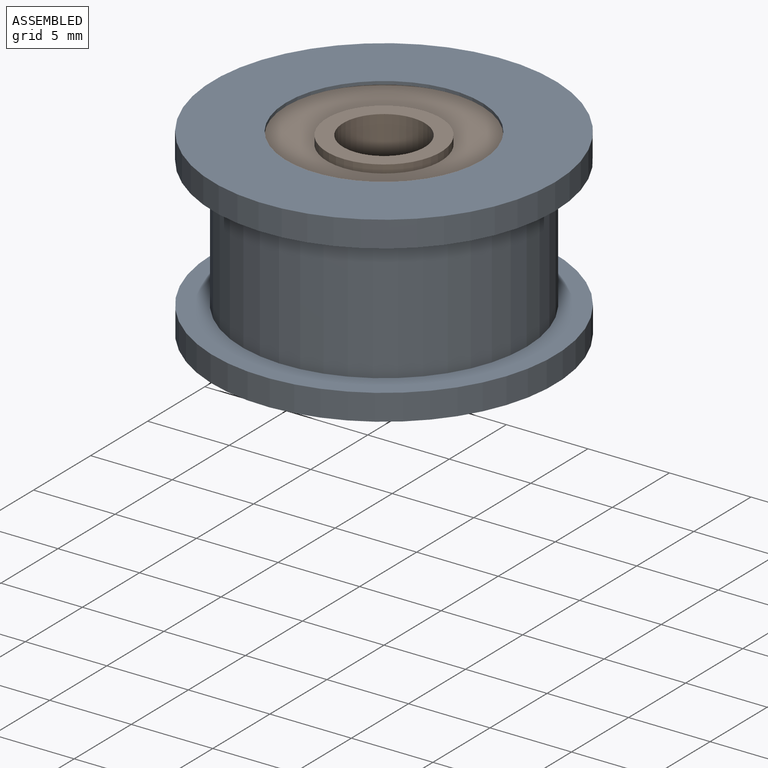
[diagram: assembled view]
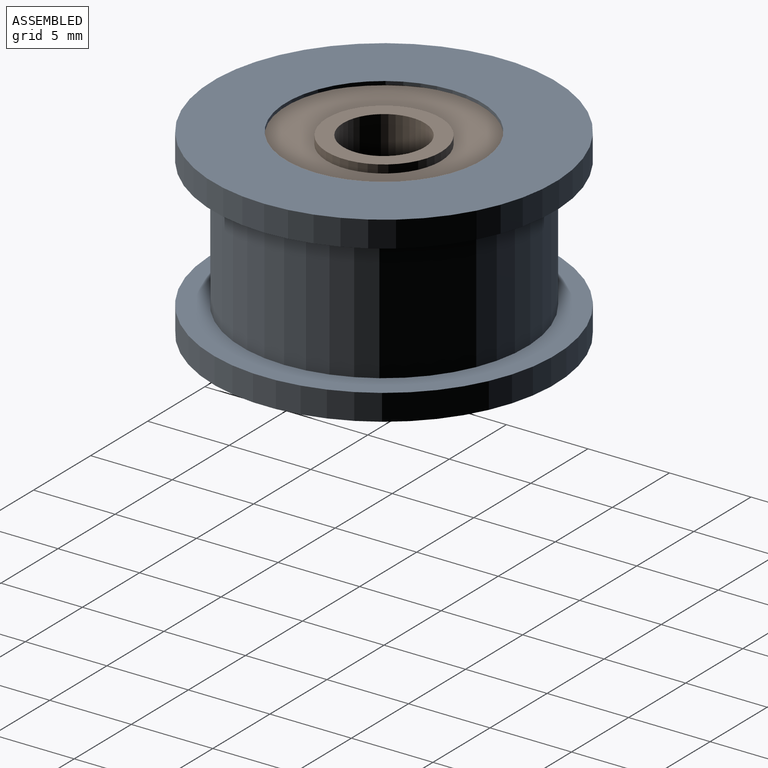
[diagram: assembled view, second angle]
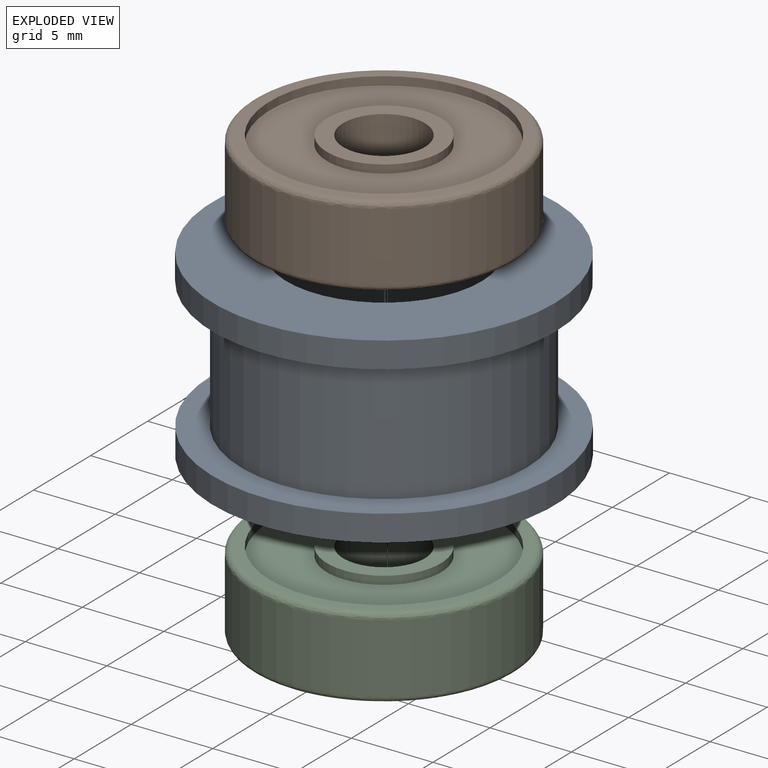
[diagram: exploded view]
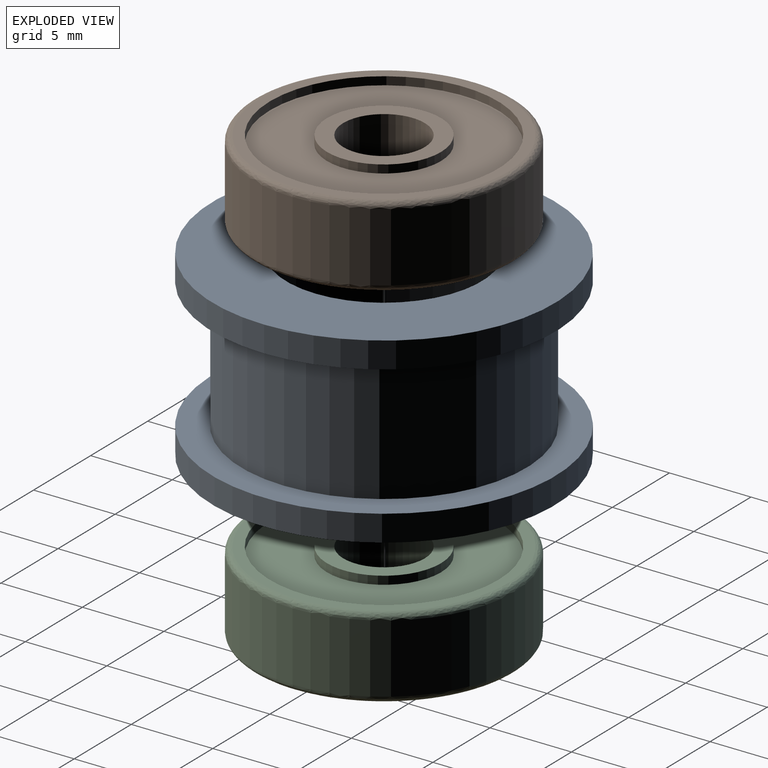
[diagram: exploded view, second angle]
ASSEMBLY  parts=4 mates=3
PART A: 10 faces, bbox 21x21x11.2 mm
  f0: plane 21x21mm, normal (0,0,-1), area 105.8mm2, adj f1,f2
  f1: cylinder r=10.5mm len=21mm, axis (0,0,1), area 105.6mm2, adj f0,f3
  f2: cylinder r=8.75mm len=17.5mm, axis (0,0,1), area 439.8mm2, adj f0,f4
  f3: plane 21x21mm, normal (0,0,1), area 233.3mm2, adj f1,f9
  f4: plane 21x21mm, normal (0,0,1), area 105.8mm2, adj f2,f5
  f5: cylinder r=10.5mm len=21mm, axis (0,0,-1), area 105.6mm2, adj f4,f7
  f6: plane 16x16mm, normal (0,0,-1), area 88mm2, adj f8,f9
  f7: plane 21x21mm, normal (0,0,-1), area 145.3mm2, adj f5,f8
  f8: cylinder r=8mm len=16mm, axis (0,0,1), area 552.9mm2, adj f6,f7
  f9: cylinder r=6mm len=12mm, axis (0,0,1), area 7.5mm2, adj f3,f6
PART B: 15 faces, bbox 16x16x5 mm
  f0: cylinder r=2.5mm len=5mm, axis (0,0,-1), area 78.5mm2, adj f1,f2
  f1: plane 7x7mm, normal (0,0,1), area 18.8mm2, adj f0,f3
  f2: plane 7x7mm, normal (0,0,-1), area 18.8mm2, adj f0,f4
  f3: cylinder r=3.5mm len=7mm, axis (0,0,-1), area 11mm2, adj f1,f5
  f4: cylinder r=3.5mm len=7mm, axis (0,0,-1), area 11mm2, adj f2,f6
  f5: plane 14x14mm, normal (0,0,1), area 115.5mm2, adj f3,f7
  f6: plane 14x14mm, normal (0,0,-1), area 115.5mm2, adj f4,f8
  f7: cylinder r=7mm len=14mm, axis (0,0,-1), area 22mm2, adj f5,f9
  f8: cylinder r=7mm len=14mm, axis (0,0,-1), area 22mm2, adj f6,f10
  f9: plane 15.23x15.23mm, normal (0,0,1), area 28mm2, adj f7,f11
  f10: plane 15.23x15.23mm, normal (0,0,-1), area 28mm2, adj f8,f12
  f11: revolved ~16x16mm, area 29.9mm2, adj f9,f13
  f12: revolved ~16x16mm, area 29.9mm2, adj f10,f13
  f13: cylinder r=8mm len=16mm, axis (0,0,-1), area 212.6mm2, adj f11,f12
  f14: revolved ~13.9x13.9mm, area 359.3mm2
PART C: same geometry as B
PART D: 4 faces, bbox 10x10x1 mm
  f0: plane 10x10mm, normal (0,0,-1), area 58.9mm2, adj f1,f2
  f1: cylinder r=5mm len=10mm, axis (0,0,-1), area 31.4mm2, adj f0,f3
  f2: cylinder r=2.5mm len=5mm, axis (0,0,-1), area 15.7mm2, adj f0,f3
  f3: plane 10x10mm, normal (0,0,1), area 58.9mm2, adj f1,f2
PLACE A at identity
PLACE B rot(axis=(-1,0,0),180deg) t=(0,0,8.5)mm
PLACE C t=(0,0,2.5)mm
PLACE D rot(axis=(1,0,0),180deg) t=(0,0,5)mm
MATE fastened B.f0 <-> D.f1  axis (0,0,1) through (0,0,6)mm
MATE fastened B.f0 <-> A.f1  axis (0,0,1) through (0,0,11)mm
MATE fastened D.f1 <-> C.f0  axis (0,0,1) through (0,0,5)mm
